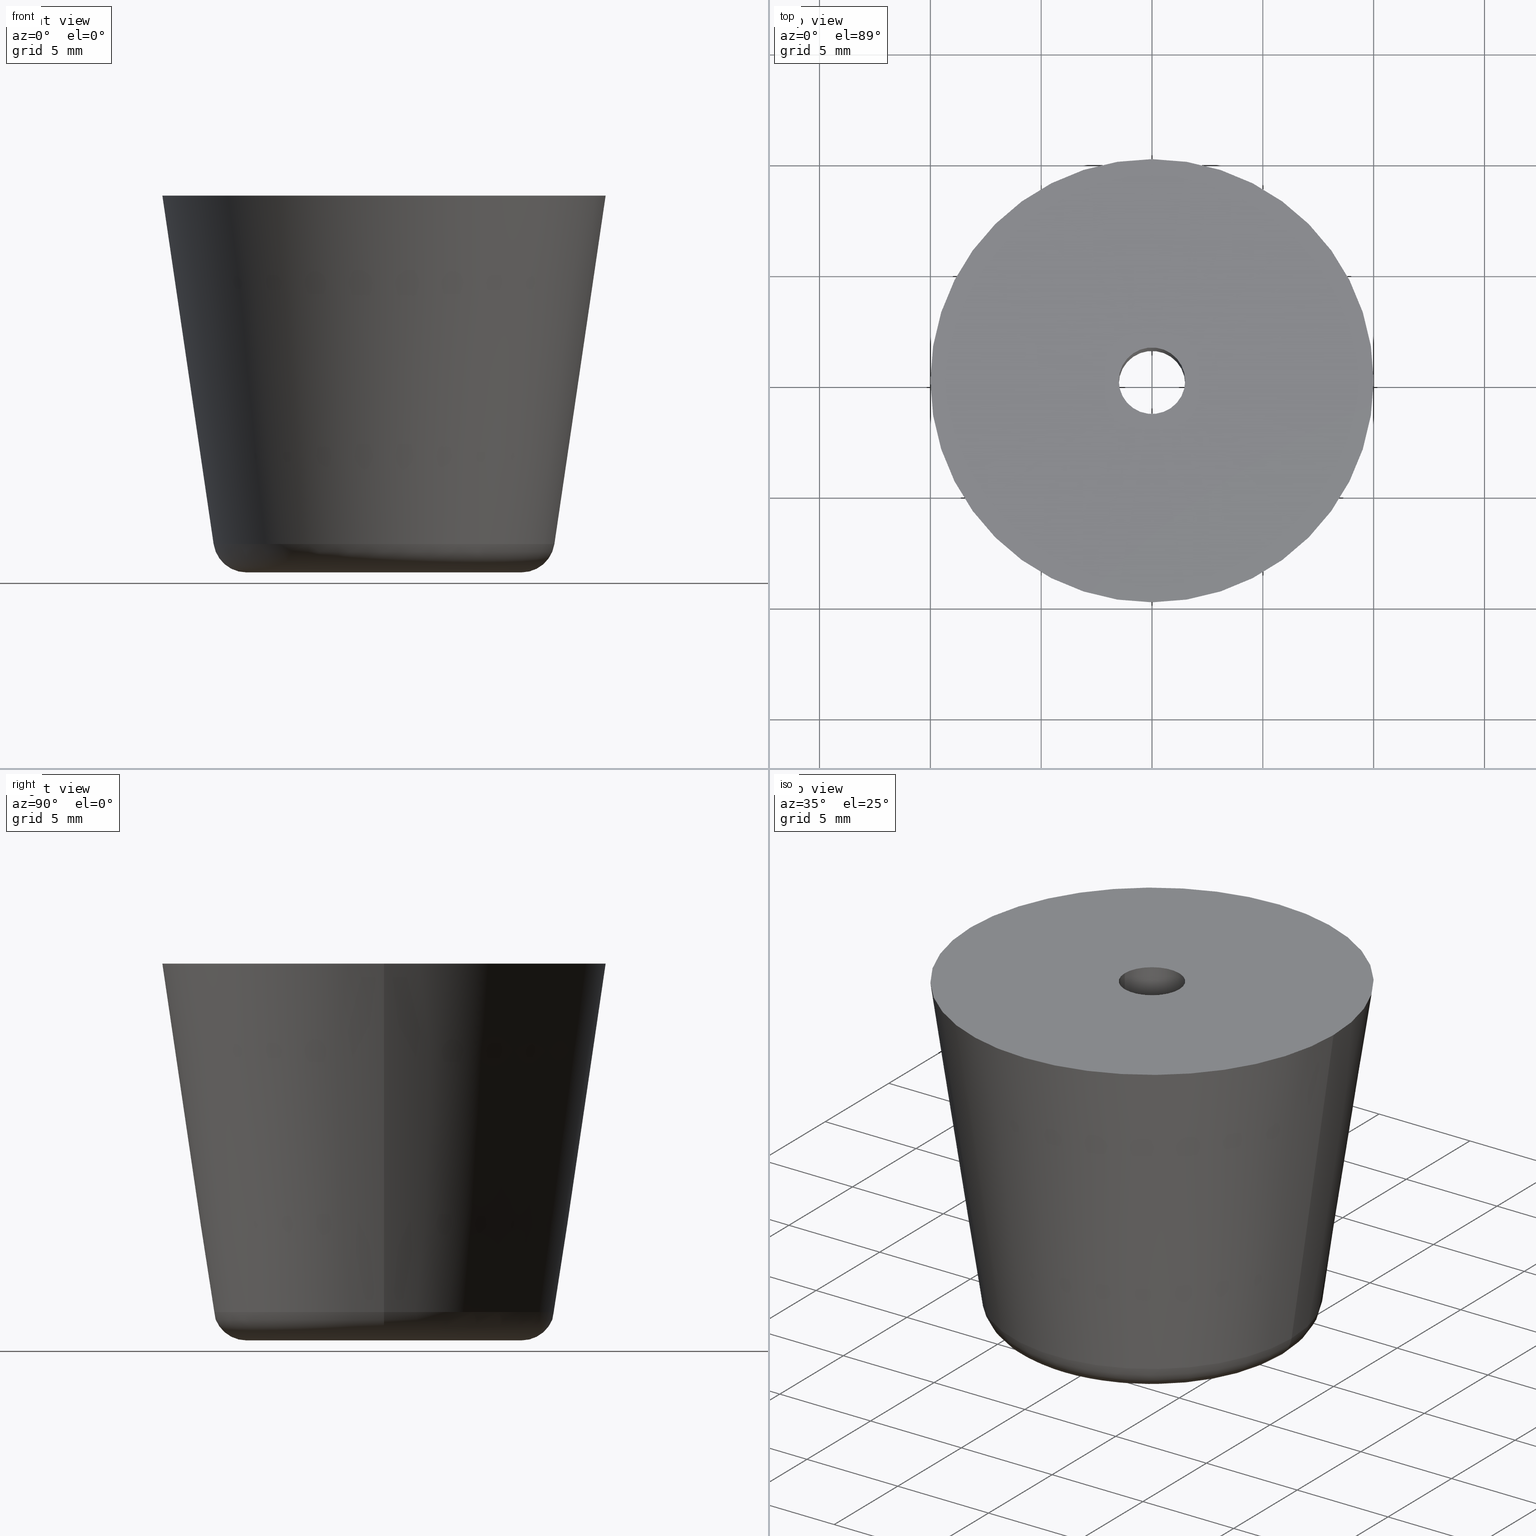
[diagram: canonical four-view strip — front | top / right | iso, engineering-drawing reading convention]
A machine part, canonical four-view strip (front | top / right | iso — engineering-drawing reading convention). The complete STEP part file that produces these views, byte-faithful:
ISO-10303-21;
HEADER;
FILE_DESCRIPTION (( 'STEP AP214' ),
    '1' );
FILE_NAME ('TM_TK_2017_F.STEP',
    '2017-02-14T04:01:53',
    ( '' ),
    ( '' ),
    'SwSTEP 2.0',
    'SolidWorks 2015',
    '' );
FILE_SCHEMA (( 'AUTOMOTIVE_DESIGN' ));
ENDSEC;

DATA;
#1 = DIRECTION ( 'NONE',  ( 0.0000000000000000000, 0.0000000000000000000, -1.000000000000000000 ) ) ;
#2 = SURFACE_SIDE_STYLE ('',( #328 ) ) ;
#3 = AXIS2_PLACEMENT_3D ( 'NONE', #483, #113, #545 ) ;
#4 = ORIENTED_EDGE ( 'NONE', *, *, #670, .F. ) ;
#5 = DIRECTION ( 'NONE',  ( -1.000000000000000000, 0.0000000000000000000, 0.0000000000000000000 ) ) ;
#6 = DIRECTION ( 'NONE',  ( 0.0000000000000000000, 0.0000000000000000000, 1.000000000000000000 ) ) ;
#7 = DIRECTION ( 'NONE',  ( 1.000000000000000000, 0.0000000000000000000, 0.0000000000000000000 ) ) ;
#8 = DIRECTION ( 'NONE',  ( -1.000000000000000000, 0.0000000000000000000, 0.0000000000000000000 ) ) ;
#9 = PRODUCT_CONTEXT ( 'NONE', #715, 'mechanical' ) ;
#10 = AXIS2_PLACEMENT_3D ( 'NONE', #344, #749, #396 ) ;
#11 = ADVANCED_BREP_SHAPE_REPRESENTATION ( '', ( #759, #408 ), #612 ) ;
#12 = STYLED_ITEM ( 'NONE', ( #375 ), #353 ) ;
#13 = DIRECTION ( 'NONE',  ( -1.000000000000000000, 0.0000000000000000000, 0.0000000000000000000 ) ) ;
#14 = ORIENTED_EDGE ( 'NONE', *, *, #517, .T. ) ;
#15 = FACE_OUTER_BOUND ( 'NONE', #686, .T. ) ;
#16 = EDGE_CURVE ( 'NONE', #427, #313, #473, .T. ) ;
#17 = VERTEX_POINT ( 'NONE', #580 ) ;
#18 = CIRCLE ( 'NONE', #623, 3.500000000000000000 ) ;
#19 = CIRCLE ( 'NONE', #725, 7.688493999999999500 ) ;
#20 = CARTESIAN_POINT ( 'NONE',  ( 1.750000000000000000, 2.143131898507868300E-016, 8.499999999999900500 ) ) ;
#21 = DIRECTION ( 'NONE',  ( 0.0000000000000000000, 0.0000000000000000000, -1.000000000000000000 ) ) ;
#22 = CARTESIAN_POINT ( 'NONE',  ( 6.204455000000000300, 8.506977582544995100E-016, 0.0000000000000000000 ) ) ;
#23 = CARTESIAN_POINT ( 'NONE',  ( 0.0000000000000000000, 0.0000000000000000000, 7.999999999999899600 ) ) ;
#24 = FACE_OUTER_BOUND ( 'NONE', #627, .T. ) ;
#25 = CARTESIAN_POINT ( 'NONE',  ( 1.750000000000000000, 2.143131898507868300E-016, 0.0000000000000000000 ) ) ;
#26 = EDGE_LOOP ( 'NONE', ( #295, #296, #32, #410 ) ) ;
#27 = ORIENTED_EDGE ( 'NONE', *, *, #394, .T. ) ;
#28 = DIRECTION ( 'NONE',  ( -1.000000000000000000, 0.0000000000000000000, 0.0000000000000000000 ) ) ;
#29 = DIRECTION ( 'NONE',  ( -1.000000000000000000, 0.0000000000000000000, 0.0000000000000000000 ) ) ;
#30 = CARTESIAN_POINT ( 'NONE',  ( 0.0000000000000000000, 0.0000000000000000000, 17.00000000000000000 ) ) ;
#31 = EDGE_CURVE ( 'NONE', #331, #313, #628, .T. ) ;
#32 = ORIENTED_EDGE ( 'NONE', *, *, #190, .F. ) ;
#33 = ADVANCED_FACE ( 'NONE', ( #15 ), #409, .F. ) ;
#34 =( REPRESENTATION_RELATIONSHIP ('NONE','NONE', #746, #521 ) REPRESENTATION_RELATIONSHIP_WITH_TRANSFORMATION ( #687 )SHAPE_REPRESENTATION_RELATIONSHIP( ) );
#35 = CONTEXT_DEPENDENT_SHAPE_REPRESENTATION ( #34, #721 ) ;
#36 = EDGE_CURVE ( 'NONE', #133, #361, #758, .T. ) ;
#37 = AXIS2_PLACEMENT_3D ( 'NONE', #299, #709, #358 ) ;
#38 = ORIENTED_EDGE ( 'NONE', *, *, #494, .T. ) ;
#39 = ADVANCED_FACE ( 'NONE', ( #150, #570 ), #285, .F. ) ;
#40 = CARTESIAN_POINT ( 'NONE',  ( 0.0000000000000000000, 0.0000000000000000000, 8.499999999999900500 ) ) ;
#41 = CARTESIAN_POINT ( 'NONE',  ( -3.500000000000000000, 0.0000000000000000000, 0.0000000000000000000 ) ) ;
#42 = EDGE_LOOP ( 'NONE', ( #386, #134 ) ) ;
#43 = AXIS2_PLACEMENT_3D ( 'NONE', #626, #382, #29 ) ;
#44 = CONICAL_SURFACE ( 'NONE', #441, 10.00000000000000000, 0.1460122558796984600 ) ;
#45 = DIRECTION ( 'NONE',  ( 0.0000000000000000000, 0.0000000000000000000, -1.000000000000000000 ) ) ;
#46 = DIRECTION ( 'NONE',  ( 0.0000000000000000000, 0.0000000000000000000, -1.000000000000000000 ) ) ;
#47 = DIRECTION ( 'NONE',  ( 1.000000000000000000, 0.0000000000000000000, 0.0000000000000000000 ) ) ;
#48 = EDGE_LOOP ( 'NONE', ( #741, #676 ) ) ;
#49 = CYLINDRICAL_SURFACE ( 'NONE', #279, 1.500000000000000000 ) ;
#50 = DIRECTION ( 'NONE',  ( 0.0000000000000000000, 0.0000000000000000000, -1.000000000000000000 ) ) ;
#51 = PRODUCT_DEFINITION_SHAPE ( 'NONE', 'NONE',  #416 ) ;
#52 = EDGE_CURVE ( 'NONE', #591, #614, #701, .T. ) ;
#53 = FACE_OUTER_BOUND ( 'NONE', #454, .T. ) ;
#54 = AXIS2_PLACEMENT_3D ( 'NONE', #181, #601, #234 ) ;
#55 = DIRECTION ( 'NONE',  ( 0.0000000000000000000, 0.0000000000000000000, 1.000000000000000000 ) ) ;
#56 = VECTOR ( 'NONE', #450, 1000.000000000000000 ) ;
#57 =( LENGTH_UNIT ( ) NAMED_UNIT ( * ) SI_UNIT ( .MILLI., .METRE. ) );
#58 =( LENGTH_UNIT ( ) NAMED_UNIT ( * ) SI_UNIT ( .MILLI., .METRE. ) );
#59 = FILL_AREA_STYLE ('',( #422 ) ) ;
#60 = ORIENTED_EDGE ( 'NONE', *, *, #760, .T. ) ;
#61 = PLANE ( 'NONE',  #238 ) ;
#62 = ORIENTED_EDGE ( 'NONE', *, *, #632, .T. ) ;
#63 = APPLICATION_PROTOCOL_DEFINITION ( 'draft international standard', 'automotive_design', 1998, #424 ) ;
#64 = DIRECTION ( 'NONE',  ( 0.0000000000000000000, 0.0000000000000000000, 1.000000000000000000 ) ) ;
#65 = CIRCLE ( 'NONE', #160, 10.00000000000000000 ) ;
#66 = VECTOR ( 'NONE', #750, 1000.000000000000000 ) ;
#67 = ORIENTED_EDGE ( 'NONE', *, *, #589, .T. ) ;
#68 = EDGE_CURVE ( 'NONE', #133, #17, #251, .T. ) ;
#69 = SHAPE_DEFINITION_REPRESENTATION ( #697, #521 ) ;
#70 = VECTOR ( 'NONE', #629, 1000.000000000000100 ) ;
#71 = ORIENTED_EDGE ( 'NONE', *, *, #68, .F. ) ;
#72 = LINE ( 'NONE', #25, #543 ) ;
#73 = DIRECTION ( 'NONE',  ( 0.0000000000000000000, 0.0000000000000000000, -1.000000000000000000 ) ) ;
#74 = EDGE_CURVE ( 'NONE', #733, #616, #89, .T. ) ;
#75 = AXIS2_PLACEMENT_3D ( 'NONE', #598, #360, #5 ) ;
#76 = AXIS2_PLACEMENT_3D ( 'NONE', #164, #46, #468 ) ;
#77 = AXIS2_PLACEMENT_3D ( 'NONE', #621, #258, #674 ) ;
#78 = CARTESIAN_POINT ( 'NONE',  ( 0.0000000000000000000, 0.0000000000000000000, 1.500000000000000000 ) ) ;
#79 = AXIS2_PLACEMENT_3D ( 'NONE', #85, #148, #446 ) ;
#80 = FACE_OUTER_BOUND ( 'NONE', #481, .T. ) ;
#81 = DIRECTION ( 'NONE',  ( -1.000000000000000000, 0.0000000000000000000, 0.0000000000000000000 ) ) ;
#82 = VECTOR ( 'NONE', #564, 1000.000000000000000 ) ;
#83 = DIRECTION ( 'NONE',  ( -0.1454939886827439900, 1.781787475355036500E-017, 0.9893591356313365900 ) ) ;
#84 = ORIENTED_EDGE ( 'NONE', *, *, #31, .T. ) ;
#85 = CARTESIAN_POINT ( 'NONE',  ( 0.0000000000000000000, 0.0000000000000000000, 0.0000000000000000000 ) ) ;
#86 = DIRECTION ( 'NONE',  ( -0.0000000000000000000, -1.000000000000000000, -0.0000000000000000000 ) ) ;
#87 = DIRECTION ( 'NONE',  ( 0.0000000000000000000, 0.0000000000000000000, 1.000000000000000000 ) ) ;
#88 = ADVANCED_FACE ( 'NONE', ( #555 ), #212, .F. ) ;
#89 = LINE ( 'NONE', #128, #70 ) ;
#90 = EDGE_CURVE ( 'NONE', #427, #466, #688, .T. ) ;
#91 = ORIENTED_EDGE ( 'NONE', *, *, #16, .F. ) ;
#92 = ORIENTED_EDGE ( 'NONE', *, *, #384, .F. ) ;
#93 = LINE ( 'NONE', #633, #412 ) ;
#94 = AXIS2_PLACEMENT_3D ( 'NONE', #655, #304, #712 ) ;
#95 =( REPRESENTATION_RELATIONSHIP ('NONE','NONE', #746, #501 ) REPRESENTATION_RELATIONSHIP_WITH_TRANSFORMATION ( #653 )SHAPE_REPRESENTATION_RELATIONSHIP( ) );
#96 = ADVANCED_FACE ( 'NONE', ( #53, #376 ), #732, .F. ) ;
#97 = CARTESIAN_POINT ( 'NONE',  ( 1.750000000000000000, 0.0000000000000000000, 8.499999999999900500 ) ) ;
#98 = DIRECTION ( 'NONE',  ( 0.0000000000000000000, 0.0000000000000000000, -1.000000000000000000 ) ) ;
#99 = DIRECTION ( 'NONE',  ( 0.0000000000000000000, 0.0000000000000000000, -1.000000000000000000 ) ) ;
#100 = DIRECTION ( 'NONE',  ( 1.000000000000000000, 0.0000000000000000000, 0.0000000000000000000 ) ) ;
#101 = VERTEX_POINT ( 'NONE', #250 ) ;
#102 = ORIENTED_EDGE ( 'NONE', *, *, #314, .T. ) ;
#103 = SURFACE_STYLE_USAGE ( .BOTH. , #487 ) ;
#104 = EDGE_CURVE ( 'NONE', #455, #227, #355, .T. ) ;
#105 = ORIENTED_EDGE ( 'NONE', *, *, #406, .F. ) ;
#106 = CARTESIAN_POINT ( 'NONE',  ( 0.0000000000000000000, 0.0000000000000000000, 7.999999999999899600 ) ) ;
#107 = ORIENTED_EDGE ( 'NONE', *, *, #429, .T. ) ;
#108 =( NAMED_UNIT ( * ) PLANE_ANGLE_UNIT ( ) SI_UNIT ( $, .RADIAN. ) );
#109 = CYLINDRICAL_SURFACE ( 'NONE', #43, 1.750000000000000000 ) ;
#110 = CARTESIAN_POINT ( 'NONE',  ( 0.0000000000000000000, 0.0000000000000000000, 8.499999999999900500 ) ) ;
#111 =( NAMED_UNIT ( * ) SI_UNIT ( $, .STERADIAN. ) SOLID_ANGLE_UNIT ( ) );
#112 = EDGE_CURVE ( 'NONE', #594, #722, #520, .T. ) ;
#113 = DIRECTION ( 'NONE',  ( 0.0000000000000000000, 0.0000000000000000000, -1.000000000000000000 ) ) ;
#114 = VECTOR ( 'NONE', #98, 1000.000000000000000 ) ;
#115 = CARTESIAN_POINT ( 'NONE',  ( 0.0000000000000000000, 0.0000000000000000000, 8.499999999999900500 ) ) ;
#116 = FACE_OUTER_BOUND ( 'NONE', #252, .T. ) ;
#117 = AXIS2_PLACEMENT_3D ( 'NONE', #236, #656, #417 ) ;
#118 = AXIS2_PLACEMENT_3D ( 'NONE', #668, #310, #524 ) ;
#119 =( NAMED_UNIT ( * ) SI_UNIT ( $, .STERADIAN. ) SOLID_ANGLE_UNIT ( ) );
#120 = CARTESIAN_POINT ( 'NONE',  ( 1.750000000000000000, 2.143131898507868300E-016, 8.499999999999900500 ) ) ;
#121 = PRODUCT_CONTEXT ( 'NONE', #240, 'mechanical' ) ;
#122 = AXIS2_PLACEMENT_3D ( 'NONE', #97, #527, #438 ) ;
#123 = PRESENTATION_LAYER_ASSIGNMENT (  '', '', ( #12 ) ) ;
#124 = CARTESIAN_POINT ( 'NONE',  ( 3.500000000000000000, 0.0000000000000000000, 7.999999999999899600 ) ) ;
#125 = CARTESIAN_POINT ( 'NONE',  ( -3.500000000000000000, 0.0000000000000000000, 7.999999999999899600 ) ) ;
#126 = STYLED_ITEM ( 'NONE', ( #260 ), #759 ) ;
#127 = EDGE_LOOP ( 'NONE', ( #321, #105 ) ) ;
#128 = CARTESIAN_POINT ( 'NONE',  ( 10.00000000000000000, 0.0000000000000000000, 17.00000000000000000 ) ) ;
#129 = EDGE_LOOP ( 'NONE', ( #718, #4 ) ) ;
#130 = EDGE_CURVE ( 'NONE', #556, #289, #174, .T. ) ;
#131 = CLOSED_SHELL ( 'NONE', ( #573, #462, #525, #341, #694, #215, #460, #88, #39, #519, #748, #452, #96, #270, #280, #737, #162 ) ) ;
#132 = EDGE_LOOP ( 'NONE', ( #717, #27, #609, #625 ) ) ;
#133 = VERTEX_POINT ( 'NONE', #120 ) ;
#134 = ORIENTED_EDGE ( 'NONE', *, *, #226, .F. ) ;
#135 = ORIENTED_EDGE ( 'NONE', *, *, #553, .T. ) ;
#136 = FACE_OUTER_BOUND ( 'NONE', #42, .T. ) ;
#137 = SURFACE_SIDE_STYLE ('',( #673 ) ) ;
#138 = AXIS2_PLACEMENT_3D ( 'NONE', #362, #6, #419 ) ;
#139 = CIRCLE ( 'NONE', #284, 1.750000000000000000 ) ;
#140 = ORIENTED_EDGE ( 'NONE', *, *, #760, .F. ) ;
#141 = UNCERTAINTY_MEASURE_WITH_UNIT (LENGTH_MEASURE( 1.000000000000000100E-005 ), #596, 'distance_accuracy_value', 'NONE');
#142 = DIRECTION ( 'NONE',  ( 0.0000000000000000000, 0.0000000000000000000, -1.000000000000000000 ) ) ;
#143 = SHAPE_REPRESENTATION_RELATIONSHIP ( 'NONE' , 'NONE' ,  #521, #423 ) ;
#144 = ORIENTED_EDGE ( 'NONE', *, *, #735, .T. ) ;
#145 = CARTESIAN_POINT ( 'NONE',  ( 0.0000000000000000000, 0.0000000000000000000, 7.999999999999899600 ) ) ;
#146 = CARTESIAN_POINT ( 'NONE',  ( 7.688494000000000400, 0.0000000000000000000, 1.281758999999894000 ) ) ;
#147 = DIRECTION ( 'NONE',  ( 0.0000000000000000000, 0.0000000000000000000, -1.000000000000000000 ) ) ;
#148 = DIRECTION ( 'NONE',  ( 0.0000000000000000000, 0.0000000000000000000, -1.000000000000000000 ) ) ;
#149 = DIRECTION ( 'NONE',  ( 0.0000000000000000000, 0.0000000000000000000, -1.000000000000000000 ) ) ;
#150 = FACE_BOUND ( 'NONE', #48, .T. ) ;
#151 = DIRECTION ( 'NONE',  ( 0.0000000000000000000, 0.0000000000000000000, -1.000000000000000000 ) ) ;
#152 = EDGE_CURVE ( 'NONE', #475, #740, #18, .T. ) ;
#153 = ORIENTED_EDGE ( 'NONE', *, *, #112, .T. ) ;
#154 = ORIENTED_EDGE ( 'NONE', *, *, #394, .F. ) ;
#155 = EDGE_LOOP ( 'NONE', ( #575, #247 ) ) ;
#156 = VECTOR ( 'NONE', #319, 1000.000000000000000 ) ;
#157 = LINE ( 'NONE', #379, #82 ) ;
#158 = EDGE_LOOP ( 'NONE', ( #451, #428, #607, #593 ) ) ;
#159 = EDGE_CURVE ( 'NONE', #591, #475, #317, .T. ) ;
#160 = AXIS2_PLACEMENT_3D ( 'NONE', #307, #716, #369 ) ;
#161 = CARTESIAN_POINT ( 'NONE',  ( 10.00000000000000000, 0.0000000000000000000, 17.00000000000000000 ) ) ;
#162 = ADVANCED_FACE ( 'NONE', ( #618 ), #297, .F. ) ;
#163 = CARTESIAN_POINT ( 'NONE',  ( 3.500000000000000000, 4.286263797015736600E-016, 0.0000000000000000000 ) ) ;
#164 = CARTESIAN_POINT ( 'NONE',  ( 0.0000000000000000000, 0.0000000000000000000, 0.0000000000000000000 ) ) ;
#165 = MECHANICAL_DESIGN_GEOMETRIC_PRESENTATION_REPRESENTATION (  '', ( #12 ), #203 ) ;
#166 = CARTESIAN_POINT ( 'NONE',  ( 0.0000000000000000000, 0.0000000000000000000, 1.281758999999894000 ) ) ;
#167 = PRESENTATION_STYLE_ASSIGNMENT (( #415 ) ) ;
#168 = ORIENTED_EDGE ( 'NONE', *, *, #104, .T. ) ;
#169 = ORIENTED_EDGE ( 'NONE', *, *, #190, .T. ) ;
#170 = AXIS2_PLACEMENT_3D ( 'NONE', #413, #55, #480 ) ;
#171 = DIRECTION ( 'NONE',  ( 0.0000000000000000000, 0.0000000000000000000, -1.000000000000000000 ) ) ;
#172 = DIRECTION ( 'NONE',  ( 0.0000000000000000000, 0.0000000000000000000, -1.000000000000000000 ) ) ;
#173 = ORIENTED_EDGE ( 'NONE', *, *, #684, .T. ) ;
#174 = CIRCLE ( 'NONE', #581, 4.500000000000000000 ) ;
#175 = EDGE_CURVE ( 'NONE', #466, #616, #635, .T. ) ;
#176 = DIRECTION ( 'NONE',  ( -1.000000000000000000, 0.0000000000000000000, 0.0000000000000000000 ) ) ;
#177 =( GEOMETRIC_REPRESENTATION_CONTEXT ( 3 ) GLOBAL_UNCERTAINTY_ASSIGNED_CONTEXT ( ( #508 ) ) GLOBAL_UNIT_ASSIGNED_CONTEXT ( ( #58, #485, #119 ) ) REPRESENTATION_CONTEXT ( 'NONE', 'WORKASPACE' ) );
#178 = FILL_AREA_STYLE ('',( #705 ) ) ;
#179 = DIRECTION ( 'NONE',  ( -1.000000000000000000, 0.0000000000000000000, 0.0000000000000000000 ) ) ;
#180 = CONTEXT_DEPENDENT_SHAPE_REPRESENTATION ( #95, #370 ) ;
#181 = CARTESIAN_POINT ( 'NONE',  ( 0.0000000000000000000, 0.0000000000000000000, 0.0000000000000000000 ) ) ;
#182 = DIRECTION ( 'NONE',  ( -1.000000000000000000, 0.0000000000000000000, 0.0000000000000000000 ) ) ;
#183 = ORIENTED_EDGE ( 'NONE', *, *, #130, .F. ) ;
#184 = DIRECTION ( 'NONE',  ( 0.0000000000000000000, 0.0000000000000000000, 1.000000000000000000 ) ) ;
#185 = APPLICATION_PROTOCOL_DEFINITION ( 'draft international standard', 'automotive_design', 1998, #549 ) ;
#186 = CARTESIAN_POINT ( 'NONE',  ( -4.500000000000000000, 0.0000000000000000000, 8.499999999999900500 ) ) ;
#187 = LINE ( 'NONE', #639, #66 ) ;
#188 = ORIENTED_EDGE ( 'NONE', *, *, #589, .F. ) ;
#189 = DIRECTION ( 'NONE',  ( 0.0000000000000000000, 0.0000000000000000000, -1.000000000000000000 ) ) ;
#190 = EDGE_CURVE ( 'NONE', #332, #17, #762, .T. ) ;
#191 =( LENGTH_UNIT ( ) NAMED_UNIT ( * ) SI_UNIT ( .MILLI., .METRE. ) );
#192 = CARTESIAN_POINT ( 'NONE',  ( 0.0000000000000000000, 0.0000000000000000000, 0.0000000000000000000 ) ) ;
#193 = ORIENTED_EDGE ( 'NONE', *, *, #517, .F. ) ;
#194 = FACE_OUTER_BOUND ( 'NONE', #753, .T. ) ;
#195 = EDGE_CURVE ( 'NONE', #17, #332, #476, .T. ) ;
#196 = EDGE_LOOP ( 'NONE', ( #558, #584, #217, #430 ) ) ;
#197 = AXIS2_PLACEMENT_3D ( 'NONE', #23, #444, #81 ) ;
#198 = AXIS2_PLACEMENT_3D ( 'NONE', #366, #603, #8 ) ;
#199 = ORIENTED_EDGE ( 'NONE', *, *, #195, .T. ) ;
#200 = AXIS2_PLACEMENT_3D ( 'NONE', #345, #397, #464 ) ;
#201 = FACE_OUTER_BOUND ( 'NONE', #391, .T. ) ;
#202 = CARTESIAN_POINT ( 'NONE',  ( -1.750000000000000000, 0.0000000000000000000, 0.0000000000000000000 ) ) ;
#203 =( GEOMETRIC_REPRESENTATION_CONTEXT ( 3 ) GLOBAL_UNCERTAINTY_ASSIGNED_CONTEXT ( ( #269 ) ) GLOBAL_UNIT_ASSIGNED_CONTEXT ( ( #191, #619, #255 ) ) REPRESENTATION_CONTEXT ( 'NONE', 'WORKASPACE' ) );
#204 = VERTEX_POINT ( 'NONE', #288 ) ;
#205 = DIRECTION ( 'NONE',  ( -1.000000000000000000, 0.0000000000000000000, 0.0000000000000000000 ) ) ;
#206 = FILL_AREA_STYLE_COLOUR ( '', #254 ) ;
#207 = FACE_OUTER_BOUND ( 'NONE', #292, .T. ) ;
#208 = PRESENTATION_LAYER_ASSIGNMENT (  '', '', ( #126 ) ) ;
#209 = CARTESIAN_POINT ( 'NONE',  ( -1.750000000000000000, 0.0000000000000000000, 8.499999999999900500 ) ) ;
#210 = DIRECTION ( 'NONE',  ( 1.000000000000000000, 0.0000000000000000000, 0.0000000000000000000 ) ) ;
#211 = ADVANCED_FACE ( 'NONE', ( #136, #743 ), #463, .F. ) ;
#212 = CYLINDRICAL_SURFACE ( 'NONE', #504, 4.500000000000000000 ) ;
#213 = LINE ( 'NONE', #202, #56 ) ;
#214 = CARTESIAN_POINT ( 'NONE',  ( 3.500000000000000000, 4.286263797015736600E-016, 7.999999999999899600 ) ) ;
#215 = ADVANCED_FACE ( 'NONE', ( #595 ), #724, .F. ) ;
#216 = ORIENTED_EDGE ( 'NONE', *, *, #390, .T. ) ;
#217 = ORIENTED_EDGE ( 'NONE', *, *, #175, .T. ) ;
#218 = CARTESIAN_POINT ( 'NONE',  ( 1.500000000000000000, 1.836970198721029900E-016, 17.00000000000000000 ) ) ;
#219 = CARTESIAN_POINT ( 'NONE',  ( 4.500000000000000000, 0.0000000000000000000, 8.499999999999900500 ) ) ;
#220 = CYLINDRICAL_SURFACE ( 'NONE', #75, 4.500000000000000000 ) ;
#221 = DIRECTION ( 'NONE',  ( -1.000000000000000000, 0.0000000000000000000, 0.0000000000000000000 ) ) ;
#222 = CARTESIAN_POINT ( 'NONE',  ( -4.500000000000000000, 0.0000000000000000000, 8.499999999999900500 ) ) ;
#223 = VECTOR ( 'NONE', #326, 1000.000000000000000 ) ;
#224 = SHAPE_DEFINITION_REPRESENTATION ( #498, #501 ) ;
#225 = CYLINDRICAL_SURFACE ( 'NONE', #79, 1.500000000000000000 ) ;
#226 = EDGE_CURVE ( 'NONE', #622, #594, #457, .T. ) ;
#227 = VERTEX_POINT ( 'NONE', #683 ) ;
#228 = CARTESIAN_POINT ( 'NONE',  ( 6.204455000000000300, 0.0000000000000000000, 0.0000000000000000000 ) ) ;
#229 = DIRECTION ( 'NONE',  ( 0.0000000000000000000, 0.0000000000000000000, -1.000000000000000000 ) ) ;
#230 = TOROIDAL_SURFACE ( 'NONE', #662, 6.204455000000000300, 1.500000000000000000 ) ;
#231 =( NAMED_UNIT ( * ) PLANE_ANGLE_UNIT ( ) SI_UNIT ( $, .RADIAN. ) );
#232 = SURFACE_STYLE_USAGE ( .BOTH. , #597 ) ;
#233 = CARTESIAN_POINT ( 'NONE',  ( 1.500000000000000000, 1.836970198721029900E-016, 0.0000000000000000000 ) ) ;
#234 = DIRECTION ( 'NONE',  ( 1.000000000000000000, 0.0000000000000000000, 0.0000000000000000000 ) ) ;
#235 = EDGE_CURVE ( 'NONE', #657, #761, #275, .T. ) ;
#236 = CARTESIAN_POINT ( 'NONE',  ( 0.0000000000000000000, 0.0000000000000000000, 8.499999999999900500 ) ) ;
#237 =( NAMED_UNIT ( * ) PLANE_ANGLE_UNIT ( ) SI_UNIT ( $, .RADIAN. ) );
#238 = AXIS2_PLACEMENT_3D ( 'NONE', #239, #64, #490 ) ;
#239 = CARTESIAN_POINT ( 'NONE',  ( 4.500000000000000000, 0.0000000000000000000, 7.999999999999899600 ) ) ;
#240 = APPLICATION_CONTEXT ( 'automotive_design' ) ;
#241 = CARTESIAN_POINT ( 'NONE',  ( 0.0000000000000000000, 0.0000000000000000000, 0.0000000000000000000 ) ) ;
#242 = AXIS2_PLACEMENT_3D ( 'NONE', #106, #539, #176 ) ;
#243 = CARTESIAN_POINT ( 'NONE',  ( 0.0000000000000000000, 0.0000000000000000000, 8.499999999999900500 ) ) ;
#244 = CIRCLE ( 'NONE', #37, 1.750000000000000000 ) ;
#245 =( LENGTH_UNIT ( ) NAMED_UNIT ( * ) SI_UNIT ( .MILLI., .METRE. ) );
#246 = PRESENTATION_STYLE_ASSIGNMENT (( #103 ) ) ;
#247 = ORIENTED_EDGE ( 'NONE', *, *, #373, .F. ) ;
#248 = ORIENTED_EDGE ( 'NONE', *, *, #287, .F. ) ;
#249 = MECHANICAL_DESIGN_GEOMETRIC_PRESENTATION_REPRESENTATION (  '', ( #126 ), #290 ) ;
#250 = CARTESIAN_POINT ( 'NONE',  ( 4.500000000000000000, 5.510910596163088600E-016, 7.999999999999899600 ) ) ;
#251 = LINE ( 'NONE', #469, #389 ) ;
#252 = EDGE_LOOP ( 'NONE', ( #169, #199 ) ) ;
#253 = ORIENTED_EDGE ( 'NONE', *, *, #646, .T. ) ;
#254 = COLOUR_RGB ( '',0.7921568627450980000, 0.8196078431372548800, 0.9333333333333333500 ) ;
#255 =( NAMED_UNIT ( * ) SI_UNIT ( $, .STERADIAN. ) SOLID_ANGLE_UNIT ( ) );
#256 = AXIS2_PLACEMENT_3D ( 'NONE', #484, #184, #604 ) ;
#257 = DIRECTION ( 'NONE',  ( -1.000000000000000000, 0.0000000000000000000, 0.0000000000000000000 ) ) ;
#258 = DIRECTION ( 'NONE',  ( 0.0000000000000000000, 0.0000000000000000000, -1.000000000000000000 ) ) ;
#259 = VECTOR ( 'NONE', #405, 1000.000000000000000 ) ;
#260 = PRESENTATION_STYLE_ASSIGNMENT (( #232 ) ) ;
#261 = DIRECTION ( 'NONE',  ( -1.000000000000000000, 0.0000000000000000000, 0.0000000000000000000 ) ) ;
#262 = DIRECTION ( 'NONE',  ( 0.0000000000000000000, 0.0000000000000000000, -1.000000000000000000 ) ) ;
#263 = DIRECTION ( 'NONE',  ( -1.000000000000000000, 0.0000000000000000000, 0.0000000000000000000 ) ) ;
#264 = ORIENTED_EDGE ( 'NONE', *, *, #735, .F. ) ;
#265 = ORIENTED_EDGE ( 'NONE', *, *, #354, .F. ) ;
#266 = CARTESIAN_POINT ( 'NONE',  ( 0.0000000000000000000, 0.0000000000000000000, 17.00000000000000000 ) ) ;
#267 = CARTESIAN_POINT ( 'NONE',  ( 0.0000000000000000000, 0.0000000000000000000, 0.0000000000000000000 ) ) ;
#268 = DIRECTION ( 'NONE',  ( -1.000000000000000000, 0.0000000000000000000, 0.0000000000000000000 ) ) ;
#269 = UNCERTAINTY_MEASURE_WITH_UNIT (LENGTH_MEASURE( 1.000000000000000100E-005 ), #191, 'distance_accuracy_value', 'NONE');
#270 = ADVANCED_FACE ( 'NONE', ( #671 ), #707, .T. ) ;
#271 = ORIENTED_EDGE ( 'NONE', *, *, #322, .F. ) ;
#272 = EDGE_CURVE ( 'NONE', #622, #101, #93, .T. ) ;
#273 = PRODUCT ( 'TM_TK_2017_F', 'TM_TK_2017_F', '', ( #9 ) ) ;
#274 = ORIENTED_EDGE ( 'NONE', *, *, #553, .F. ) ;
#275 = CIRCLE ( 'NONE', #505, 1.500000000000000000 ) ;
#276 = LINE ( 'NONE', #529, #114 ) ;
#277 = COLOUR_RGB ( '',0.7921568627450980000, 0.8196078431372548800, 0.9333333333333333500 ) ;
#278 = EDGE_CURVE ( 'NONE', #368, #204, #392, .T. ) ;
#279 = AXIS2_PLACEMENT_3D ( 'NONE', #241, #663, #13 ) ;
#280 = ADVANCED_FACE ( 'NONE', ( #559 ), #230, .T. ) ;
#281 = AXIS2_PLACEMENT_3D ( 'NONE', #166, #585, #221 ) ;
#282 = DIRECTION ( 'NONE',  ( -1.000000000000000000, 0.0000000000000000000, 0.0000000000000000000 ) ) ;
#283 = UNCERTAINTY_MEASURE_WITH_UNIT (LENGTH_MEASURE( 1.000000000000000100E-005 ), #245, 'distance_accuracy_value', 'NONE');
#284 = AXIS2_PLACEMENT_3D ( 'NONE', #534, #171, #587 ) ;
#285 = PLANE ( 'NONE',  #378 ) ;
#286 = ORIENTED_EDGE ( 'NONE', *, *, #74, .T. ) ;
#287 = EDGE_CURVE ( 'NONE', #368, #227, #72, .T. ) ;
#288 = CARTESIAN_POINT ( 'NONE',  ( -1.750000000000000000, 0.0000000000000000000, 8.499999999999900500 ) ) ;
#289 = VERTEX_POINT ( 'NONE', #513 ) ;
#290 =( GEOMETRIC_REPRESENTATION_CONTEXT ( 3 ) GLOBAL_UNCERTAINTY_ASSIGNED_CONTEXT ( ( #574 ) ) GLOBAL_UNIT_ASSIGNED_CONTEXT ( ( #651, #301, #710 ) ) REPRESENTATION_CONTEXT ( 'NONE', 'WORKASPACE' ) );
#291 = PRODUCT_DEFINITION_CONTEXT ( 'detailed design', #745, 'design' ) ;
#292 = EDGE_LOOP ( 'NONE', ( #264, #188 ) ) ;
#293 = ORIENTED_EDGE ( 'NONE', *, *, #31, .F. ) ;
#294 = ORIENTED_EDGE ( 'NONE', *, *, #322, .T. ) ;
#295 = ORIENTED_EDGE ( 'NONE', *, *, #720, .T. ) ;
#296 = ORIENTED_EDGE ( 'NONE', *, *, #68, .T. ) ;
#297 = CYLINDRICAL_SURFACE ( 'NONE', #729, 3.500000000000000000 ) ;
#298 = DIRECTION ( 'NONE',  ( 1.000000000000000000, 0.0000000000000000000, 0.0000000000000000000 ) ) ;
#299 = CARTESIAN_POINT ( 'NONE',  ( 0.0000000000000000000, 0.0000000000000000000, 7.999999999999899600 ) ) ;
#300 = PRODUCT_DEFINITION ( 'UNKNOWN', '', #569, #631 ) ;
#301 =( NAMED_UNIT ( * ) PLANE_ANGLE_UNIT ( ) SI_UNIT ( $, .RADIAN. ) );
#302 = DIRECTION ( 'NONE',  ( 0.0000000000000000000, 0.0000000000000000000, -1.000000000000000000 ) ) ;
#303 = ORIENTED_EDGE ( 'NONE', *, *, #175, .F. ) ;
#304 = DIRECTION ( 'NONE',  ( 0.0000000000000000000, 0.0000000000000000000, 1.000000000000000000 ) ) ;
#305 = DIRECTION ( 'NONE',  ( -1.224646799147353200E-016, 1.000000000000000000, 0.0000000000000000000 ) ) ;
#306 = CIRCLE ( 'NONE', #333, 1.750000000000000000 ) ;
#307 = CARTESIAN_POINT ( 'NONE',  ( 0.0000000000000000000, 0.0000000000000000000, 17.00000000000000000 ) ) ;
#308 = EDGE_LOOP ( 'NONE', ( #60, #742 ) ) ;
#309 = DIRECTION ( 'NONE',  ( -1.000000000000000000, 0.0000000000000000000, 0.0000000000000000000 ) ) ;
#310 = DIRECTION ( 'NONE',  ( 0.0000000000000000000, 0.0000000000000000000, -1.000000000000000000 ) ) ;
#311 = VECTOR ( 'NONE', #21, 1000.000000000000000 ) ;
#312 = DIRECTION ( 'NONE',  ( 0.0000000000000000000, 0.0000000000000000000, -1.000000000000000000 ) ) ;
#313 = VERTEX_POINT ( 'NONE', #568 ) ;
#314 = EDGE_CURVE ( 'NONE', #361, #332, #213, .T. ) ;
#315 = EDGE_LOOP ( 'NONE', ( #271, #62, #738, #644 ) ) ;
#316 = ORIENTED_EDGE ( 'NONE', *, *, #287, .T. ) ;
#317 = LINE ( 'NONE', #728, #156 ) ;
#318 = CIRCLE ( 'NONE', #691, 4.500000000000000000 ) ;
#319 = DIRECTION ( 'NONE',  ( 0.0000000000000000000, 0.0000000000000000000, -1.000000000000000000 ) ) ;
#320 = ORIENTED_EDGE ( 'NONE', *, *, #195, .F. ) ;
#321 = ORIENTED_EDGE ( 'NONE', *, *, #104, .F. ) ;
#322 = EDGE_CURVE ( 'NONE', #614, #591, #377, .T. ) ;
#323 = AXIS2_PLACEMENT_3D ( 'NONE', #124, #693, #346 ) ;
#324 = AXIS2_PLACEMENT_3D ( 'NONE', #400, #45, #467 ) ;
#325 = AXIS2_PLACEMENT_3D ( 'NONE', #531, #641, #347 ) ;
#326 = DIRECTION ( 'NONE',  ( 0.0000000000000000000, 0.0000000000000000000, -1.000000000000000000 ) ) ;
#327 = DIRECTION ( 'NONE',  ( 0.0000000000000000000, 0.0000000000000000000, -1.000000000000000000 ) ) ;
#328 = SURFACE_STYLE_FILL_AREA ( #357 ) ;
#329 = DIRECTION ( 'NONE',  ( -1.000000000000000000, 0.0000000000000000000, 0.0000000000000000000 ) ) ;
#330 = EDGE_CURVE ( 'NONE', #761, #657, #690, .T. ) ;
#331 = VERTEX_POINT ( 'NONE', #22 ) ;
#332 = VERTEX_POINT ( 'NONE', #510 ) ;
#333 = AXIS2_PLACEMENT_3D ( 'NONE', #115, #546, #182 ) ;
#334 = DIRECTION ( 'NONE',  ( -1.000000000000000000, 0.0000000000000000000, 0.0000000000000000000 ) ) ;
#335 = ADVANCED_FACE ( 'NONE', ( #194 ), #109, .F. ) ;
#336 = ORIENTED_EDGE ( 'NONE', *, *, #384, .T. ) ;
#337 = PRODUCT ( 'washer', 'washer', '', ( #121 ) ) ;
#338 = PRODUCT_CONTEXT ( 'NONE', #660, 'mechanical' ) ;
#339 = PRODUCT_DEFINITION ( 'UNKNOWN', '', #645, #291 ) ;
#340 = EDGE_LOOP ( 'NONE', ( #92, #14, #67, #590 ) ) ;
#341 = ADVANCED_FACE ( 'NONE', ( #359 ), #225, .F. ) ;
#342 = AXIS2_PLACEMENT_3D ( 'NONE', #552, #189, #611 ) ;
#343 = ORIENTED_EDGE ( 'NONE', *, *, #406, .T. ) ;
#344 = CARTESIAN_POINT ( 'NONE',  ( 0.0000000000000000000, 0.0000000000000000000, 7.999999999999899600 ) ) ;
#345 = CARTESIAN_POINT ( 'NONE',  ( 0.0000000000000000000, 0.0000000000000000000, 0.0000000000000000000 ) ) ;
#346 = DIRECTION ( 'NONE',  ( -1.000000000000000000, 0.0000000000000000000, 0.0000000000000000000 ) ) ;
#347 = DIRECTION ( 'NONE',  ( -1.000000000000000000, 0.0000000000000000000, 0.0000000000000000000 ) ) ;
#348 = DIRECTION ( 'NONE',  ( 0.0000000000000000000, 0.0000000000000000000, -1.000000000000000000 ) ) ;
#349 = CYLINDRICAL_SURFACE ( 'NONE', #325, 1.750000000000000000 ) ;
#350 = EDGE_LOOP ( 'NONE', ( #154, #634, #38, #739 ) ) ;
#351 = CARTESIAN_POINT ( 'NONE',  ( -4.500000000000000000, 0.0000000000000000000, 7.999999999999899600 ) ) ;
#352 = CYLINDRICAL_SURFACE ( 'NONE', #76, 1.750000000000000000 ) ;
#353 = MANIFOLD_SOLID_BREP ( '���߰�1', #131 ) ;
#354 = EDGE_CURVE ( 'NONE', #101, #722, #636, .T. ) ;
#355 = CIRCLE ( 'NONE', #420, 1.750000000000000000 ) ;
#356 = CARTESIAN_POINT ( 'NONE',  ( 0.0000000000000000000, 0.0000000000000000000, 7.999999999999899600 ) ) ;
#357 = FILL_AREA_STYLE ('',( #708 ) ) ;
#358 = DIRECTION ( 'NONE',  ( -1.000000000000000000, 0.0000000000000000000, 0.0000000000000000000 ) ) ;
#359 = FACE_OUTER_BOUND ( 'NONE', #132, .T. ) ;
#360 = DIRECTION ( 'NONE',  ( 0.0000000000000000000, 0.0000000000000000000, -1.000000000000000000 ) ) ;
#361 = VERTEX_POINT ( 'NONE', #209 ) ;
#362 = CARTESIAN_POINT ( 'NONE',  ( 0.0000000000000000000, 0.0000000000000000000, 0.0000000000000000000 ) ) ;
#363 = EDGE_CURVE ( 'NONE', #613, #472, #522, .T. ) ;
#364 = DIRECTION ( 'NONE',  ( 0.0000000000000000000, 0.0000000000000000000, 1.000000000000000000 ) ) ;
#365 = AXIS2_PLACEMENT_3D ( 'NONE', #465, #99, #530 ) ;
#366 = CARTESIAN_POINT ( 'NONE',  ( 0.0000000000000000000, 0.0000000000000000000, 0.0000000000000000000 ) ) ;
#367 = APPLICATION_PROTOCOL_DEFINITION ( 'draft international standard', 'automotive_design', 1998, #715 ) ;
#368 = VERTEX_POINT ( 'NONE', #20 ) ;
#369 = DIRECTION ( 'NONE',  ( -1.000000000000000000, 0.0000000000000000000, 0.0000000000000000000 ) ) ;
#370 = PRODUCT_DEFINITION_SHAPE ( 'NONE', 'NONE',  #764 ) ;
#371 = DIRECTION ( 'NONE',  ( 0.0000000000000000000, 0.0000000000000000000, -1.000000000000000000 ) ) ;
#372 = FACE_BOUND ( 'NONE', #127, .T. ) ;
#373 = EDGE_CURVE ( 'NONE', #472, #613, #478, .T. ) ;
#374 =( GEOMETRIC_REPRESENTATION_CONTEXT ( 3 ) GLOBAL_UNCERTAINTY_ASSIGNED_CONTEXT ( ( #431 ) ) GLOBAL_UNIT_ASSIGNED_CONTEXT ( ( #602, #237, #658 ) ) REPRESENTATION_CONTEXT ( 'NONE', 'WORKASPACE' ) );
#375 = PRESENTATION_STYLE_ASSIGNMENT (( #557 ) ) ;
#376 = FACE_BOUND ( 'NONE', #554, .T. ) ;
#377 = CIRCLE ( 'NONE', #624, 3.500000000000000000 ) ;
#378 = AXIS2_PLACEMENT_3D ( 'NONE', #219, #401, #47 ) ;
#379 = CARTESIAN_POINT ( 'NONE',  ( -1.500000000000000000, 0.0000000000000000000, 0.0000000000000000000 ) ) ;
#380 = DIRECTION ( 'NONE',  ( -1.000000000000000000, 0.0000000000000000000, 0.0000000000000000000 ) ) ;
#381 = CIRCLE ( 'NONE', #3, 6.204455000000000300 ) ;
#382 = DIRECTION ( 'NONE',  ( 0.0000000000000000000, 0.0000000000000000000, -1.000000000000000000 ) ) ;
#383 = LINE ( 'NONE', #511, #223 ) ;
#384 = EDGE_CURVE ( 'NONE', #289, #556, #318, .T. ) ;
#385 = DIRECTION ( 'NONE',  ( -1.000000000000000000, 0.0000000000000000000, 0.0000000000000000000 ) ) ;
#386 = ORIENTED_EDGE ( 'NONE', *, *, #433, .F. ) ;
#387 = SHAPE_DEFINITION_REPRESENTATION ( #51, #746 ) ;
#388 = PRODUCT_DEFINITION_CONTEXT ( 'detailed design', #424, 'design' ) ;
#389 = VECTOR ( 'NONE', #495, 1000.000000000000000 ) ;
#390 = EDGE_CURVE ( 'NONE', #427, #733, #19, .T. ) ;
#391 = EDGE_LOOP ( 'NONE', ( #566, #493 ) ) ;
#392 = CIRCLE ( 'NONE', #582, 1.750000000000000000 ) ;
#393 = APPLICATION_PROTOCOL_DEFINITION ( 'draft international standard', 'automotive_design', 1998, #745 ) ;
#394 = EDGE_CURVE ( 'NONE', #657, #472, #562, .T. ) ;
#395 = AXIS2_PLACEMENT_3D ( 'NONE', #659, #305, #714 ) ;
#396 = DIRECTION ( 'NONE',  ( -1.000000000000000000, 0.0000000000000000000, 0.0000000000000000000 ) ) ;
#397 = DIRECTION ( 'NONE',  ( 0.0000000000000000000, 0.0000000000000000000, -1.000000000000000000 ) ) ;
#398 = ADVANCED_FACE ( 'NONE', ( #80 ), #220, .T. ) ;
#399 = VECTOR ( 'NONE', #229, 1000.000000000000000 ) ;
#400 = CARTESIAN_POINT ( 'NONE',  ( 0.0000000000000000000, 0.0000000000000000000, 0.0000000000000000000 ) ) ;
#401 = DIRECTION ( 'NONE',  ( 0.0000000000000000000, 0.0000000000000000000, 1.000000000000000000 ) ) ;
#402 = SURFACE_STYLE_FILL_AREA ( #59 ) ;
#403 = VERTEX_POINT ( 'NONE', #479 ) ;
#404 = ORIENTED_EDGE ( 'NONE', *, *, #448, .F. ) ;
#405 = DIRECTION ( 'NONE',  ( 0.0000000000000000000, 0.0000000000000000000, -1.000000000000000000 ) ) ;
#406 = EDGE_CURVE ( 'NONE', #227, #455, #244, .T. ) ;
#407 = CARTESIAN_POINT ( 'NONE',  ( 0.0000000000000000000, 0.0000000000000000000, 17.00000000000000000 ) ) ;
#408 = AXIS2_PLACEMENT_3D ( 'NONE', #713, #364, #7 ) ;
#409 = CYLINDRICAL_SURFACE ( 'NONE', #605, 1.750000000000000000 ) ;
#410 = ORIENTED_EDGE ( 'NONE', *, *, #314, .F. ) ;
#411 = ORIENTED_EDGE ( 'NONE', *, *, #330, .T. ) ;
#412 = VECTOR ( 'NONE', #507, 1000.000000000000000 ) ;
#413 = CARTESIAN_POINT ( 'NONE',  ( 1.750000000000000000, 0.0000000000000000000, 7.999999999999899600 ) ) ;
#414 = DIRECTION ( 'NONE',  ( -1.000000000000000000, 0.0000000000000000000, 0.0000000000000000000 ) ) ;
#415 = SURFACE_STYLE_USAGE ( .BOTH. , #2 ) ;
#416 = PRODUCT_DEFINITION ( 'UNKNOWN', '', #458, #388 ) ;
#417 = DIRECTION ( 'NONE',  ( -1.000000000000000000, 0.0000000000000000000, 0.0000000000000000000 ) ) ;
#418 = LINE ( 'NONE', #755, #259 ) ;
#419 = DIRECTION ( 'NONE',  ( 1.000000000000000000, 0.0000000000000000000, 0.0000000000000000000 ) ) ;
#420 = AXIS2_PLACEMENT_3D ( 'NONE', #506, #142, #28 ) ;
#421 = AXIS2_PLACEMENT_3D ( 'NONE', #40, #692, #385 ) ;
#422 = FILL_AREA_STYLE_COLOUR ( '', #565 ) ;
#423 = ADVANCED_BREP_SHAPE_REPRESENTATION ( '', ( #353, #408 ), #374 ) ;
#424 = APPLICATION_CONTEXT ( 'automotive_design' ) ;
#425 = PLANE ( 'NONE',  #323 ) ;
#426 = ORIENTED_EDGE ( 'NONE', *, *, #272, .T. ) ;
#427 = VERTEX_POINT ( 'NONE', #541 ) ;
#428 = ORIENTED_EDGE ( 'NONE', *, *, #52, .F. ) ;
#429 = EDGE_CURVE ( 'NONE', #313, #331, #381, .T. ) ;
#430 = ORIENTED_EDGE ( 'NONE', *, *, #74, .F. ) ;
#431 = UNCERTAINTY_MEASURE_WITH_UNIT (LENGTH_MEASURE( 1.000000000000000100E-005 ), #602, 'distance_accuracy_value', 'NONE');
#432 = ORIENTED_EDGE ( 'NONE', *, *, #90, .F. ) ;
#433 = EDGE_CURVE ( 'NONE', #594, #622, #699, .T. ) ;
#434 = ORIENTED_EDGE ( 'NONE', *, *, #130, .T. ) ;
#435 = CIRCLE ( 'NONE', #197, 4.500000000000000000 ) ;
#436 = CARTESIAN_POINT ( 'NONE',  ( 0.0000000000000000000, 0.0000000000000000000, 7.999999999999899600 ) ) ;
#437 = CYLINDRICAL_SURFACE ( 'NONE', #200, 4.500000000000000000 ) ;
#438 = DIRECTION ( 'NONE',  ( -1.000000000000000000, 0.0000000000000000000, 0.0000000000000000000 ) ) ;
#439 = CIRCLE ( 'NONE', #242, 4.500000000000000000 ) ;
#440 = AXIS2_PLACEMENT_3D ( 'NONE', #526, #86, #149 ) ;
#441 = AXIS2_PLACEMENT_3D ( 'NONE', #532, #586, #100 ) ;
#442 = EDGE_LOOP ( 'NONE', ( #756, #294 ) ) ;
#443 = AXIS2_PLACEMENT_3D ( 'NONE', #228, #649, #298 ) ;
#444 = DIRECTION ( 'NONE',  ( 0.0000000000000000000, 0.0000000000000000000, -1.000000000000000000 ) ) ;
#445 = CARTESIAN_POINT ( 'NONE',  ( -10.00000000000000000, 1.224646799147353300E-015, 17.00000000000000000 ) ) ;
#446 = DIRECTION ( 'NONE',  ( -1.000000000000000000, 0.0000000000000000000, 0.0000000000000000000 ) ) ;
#447 = CLOSED_SHELL ( 'NONE', ( #637, #33, #335, #211, #398, #578 ) ) ;
#448 = EDGE_CURVE ( 'NONE', #616, #466, #65, .T. ) ;
#449 = STYLED_ITEM ( 'NONE', ( #246 ), #423 ) ;
#450 = DIRECTION ( 'NONE',  ( 0.0000000000000000000, 0.0000000000000000000, -1.000000000000000000 ) ) ;
#451 = ORIENTED_EDGE ( 'NONE', *, *, #632, .F. ) ;
#452 = ADVANCED_FACE ( 'NONE', ( #550 ), #49, .F. ) ;
#453 = ORIENTED_EDGE ( 'NONE', *, *, #36, .T. ) ;
#454 = EDGE_LOOP ( 'NONE', ( #404, #303 ) ) ;
#455 = VERTEX_POINT ( 'NONE', #489 ) ;
#456 = ORIENTED_EDGE ( 'NONE', *, *, #646, .F. ) ;
#457 = CIRCLE ( 'NONE', #421, 4.500000000000000000 ) ;
#458 = PRODUCT_DEFINITION_FORMATION_WITH_SPECIFIED_SOURCE ( 'ANY', '', #273, .NOT_KNOWN. ) ;
#459 = EDGE_LOOP ( 'NONE', ( #193, #183, #588, #144 ) ) ;
#460 = ADVANCED_FACE ( 'NONE', ( #207, #533 ), #425, .F. ) ;
#461 = AXIS2_PLACEMENT_3D ( 'NONE', #757, #630, #268 ) ;
#462 = ADVANCED_FACE ( 'NONE', ( #679 ), #515, .T. ) ;
#463 = PLANE ( 'NONE',  #122 ) ;
#464 = DIRECTION ( 'NONE',  ( -1.000000000000000000, 0.0000000000000000000, 0.0000000000000000000 ) ) ;
#465 = CARTESIAN_POINT ( 'NONE',  ( 0.0000000000000000000, 0.0000000000000000000, 1.500000000000000000 ) ) ;
#466 = VERTEX_POINT ( 'NONE', #751 ) ;
#467 = DIRECTION ( 'NONE',  ( -1.000000000000000000, 0.0000000000000000000, 0.0000000000000000000 ) ) ;
#468 = DIRECTION ( 'NONE',  ( -1.000000000000000000, 0.0000000000000000000, 0.0000000000000000000 ) ) ;
#469 = CARTESIAN_POINT ( 'NONE',  ( 1.750000000000000000, 2.143131898507868300E-016, 0.0000000000000000000 ) ) ;
#470 = CARTESIAN_POINT ( 'NONE',  ( 4.500000000000000000, 5.510910596163088600E-016, 7.999999999999899600 ) ) ;
#471 = DIRECTION ( 'NONE',  ( -1.000000000000000000, 0.0000000000000000000, 0.0000000000000000000 ) ) ;
#472 = VERTEX_POINT ( 'NONE', #583 ) ;
#473 = CIRCLE ( 'NONE', #440, 1.500000000000000000 ) ;
#474 = EDGE_CURVE ( 'NONE', #722, #101, #435, .T. ) ;
#475 = VERTEX_POINT ( 'NONE', #41 ) ;
#476 = CIRCLE ( 'NONE', #10, 1.750000000000000000 ) ;
#477 = PLANE ( 'NONE',  #170 ) ;
#478 = CIRCLE ( 'NONE', #652, 1.500000000000000000 ) ;
#479 = CARTESIAN_POINT ( 'NONE',  ( -4.500000000000000000, 0.0000000000000000000, 7.999999999999899600 ) ) ;
#480 = DIRECTION ( 'NONE',  ( 1.000000000000000000, 0.0000000000000000000, 0.0000000000000000000 ) ) ;
#481 = EDGE_LOOP ( 'NONE', ( #497, #703, #153, #265 ) ) ;
#482 =( NAMED_UNIT ( * ) PLANE_ANGLE_UNIT ( ) SI_UNIT ( $, .RADIAN. ) );
#483 = CARTESIAN_POINT ( 'NONE',  ( 0.0000000000000000000, 0.0000000000000000000, 0.0000000000000000000 ) ) ;
#484 = CARTESIAN_POINT ( 'NONE',  ( 0.0000000000000000000, 0.0000000000000000000, 0.0000000000000000000 ) ) ;
#485 =( NAMED_UNIT ( * ) PLANE_ANGLE_UNIT ( ) SI_UNIT ( $, .RADIAN. ) );
#486 = AXIS2_PLACEMENT_3D ( 'NONE', #267, #682, #334 ) ;
#487 = SURFACE_SIDE_STYLE ('',( #402 ) ) ;
#488 = APPLICATION_PROTOCOL_DEFINITION ( 'draft international standard', 'automotive_design', 1998, #240 ) ;
#489 = CARTESIAN_POINT ( 'NONE',  ( -1.750000000000000000, 0.0000000000000000000, 7.999999999999899600 ) ) ;
#490 = DIRECTION ( 'NONE',  ( 1.000000000000000000, 0.0000000000000000000, 0.0000000000000000000 ) ) ;
#491 = COLOUR_RGB ( '',0.7921568627450980000, 0.8196078431372548800, 0.9333333333333333500 ) ;
#492 = EDGE_LOOP ( 'NONE', ( #528, #426, #512, #664 ) ) ;
#493 = ORIENTED_EDGE ( 'NONE', *, *, #354, .T. ) ;
#494 = EDGE_CURVE ( 'NONE', #761, #613, #157, .T. ) ;
#495 = DIRECTION ( 'NONE',  ( 0.0000000000000000000, 0.0000000000000000000, -1.000000000000000000 ) ) ;
#496 = PRESENTATION_LAYER_ASSIGNMENT (  '', '', ( #449 ) ) ;
#497 = ORIENTED_EDGE ( 'NONE', *, *, #272, .F. ) ;
#498 = PRODUCT_DEFINITION_SHAPE ( 'NONE', 'NONE',  #300 ) ;
#499 = FILL_AREA_STYLE ('',( #206 ) ) ;
#500 = DIRECTION ( 'NONE',  ( -1.000000000000000000, 0.0000000000000000000, 0.0000000000000000000 ) ) ;
#501 = SHAPE_REPRESENTATION ( 'washer', ( #408 ), #612 ) ;
#502 = PRODUCT_RELATED_PRODUCT_CATEGORY ( 'part', '', ( #273 ) ) ;
#503 = EDGE_LOOP ( 'NONE', ( #432, #736, #286, #667 ) ) ;
#504 = AXIS2_PLACEMENT_3D ( 'NONE', #719, #312, #263 ) ;
#505 = AXIS2_PLACEMENT_3D ( 'NONE', #518, #151, #572 ) ;
#506 = CARTESIAN_POINT ( 'NONE',  ( 0.0000000000000000000, 0.0000000000000000000, 7.999999999999899600 ) ) ;
#507 = DIRECTION ( 'NONE',  ( 0.0000000000000000000, 0.0000000000000000000, -1.000000000000000000 ) ) ;
#508 = UNCERTAINTY_MEASURE_WITH_UNIT (LENGTH_MEASURE( 1.000000000000000100E-005 ), #58, 'distance_accuracy_value', 'NONE');
#509 = CYLINDRICAL_SURFACE ( 'NONE', #198, 3.500000000000000000 ) ;
#510 = CARTESIAN_POINT ( 'NONE',  ( -1.750000000000000000, 0.0000000000000000000, 7.999999999999899600 ) ) ;
#511 = CARTESIAN_POINT ( 'NONE',  ( 4.500000000000000000, 5.510910596163088600E-016, 0.0000000000000000000 ) ) ;
#512 = ORIENTED_EDGE ( 'NONE', *, *, #474, .F. ) ;
#513 = CARTESIAN_POINT ( 'NONE',  ( 4.500000000000000000, 5.510910596163088600E-016, 8.499999999999900500 ) ) ;
#514 = CARTESIAN_POINT ( 'NONE',  ( 1.500000000000000000, 0.0000000000000000000, 17.00000000000000000 ) ) ;
#515 = TOROIDAL_SURFACE ( 'NONE', #365, 6.204455000000000300, 1.500000000000000000 ) ;
#516 = CARTESIAN_POINT ( 'NONE',  ( 0.0000000000000000000, 0.0000000000000000000, 0.0000000000000000000 ) ) ;
#517 = EDGE_CURVE ( 'NONE', #289, #723, #383, .T. ) ;
#518 = CARTESIAN_POINT ( 'NONE',  ( 0.0000000000000000000, 0.0000000000000000000, 17.00000000000000000 ) ) ;
#519 = ADVANCED_FACE ( 'NONE', ( #700 ), #352, .T. ) ;
#520 = LINE ( 'NONE', #675, #311 ) ;
#521 = SHAPE_REPRESENTATION ( 'rubber foot', ( #408 ), #374 ) ;
#522 = CIRCLE ( 'NONE', #77, 1.500000000000000000 ) ;
#523 = ORIENTED_EDGE ( 'NONE', *, *, #16, .T. ) ;
#524 = DIRECTION ( 'NONE',  ( -1.000000000000000000, 0.0000000000000000000, 0.0000000000000000000 ) ) ;
#525 = ADVANCED_FACE ( 'NONE', ( #551 ), #44, .T. ) ;
#526 = CARTESIAN_POINT ( 'NONE',  ( -6.204455000000000300, 0.0000000000000000000, 1.500000000000000000 ) ) ;
#527 = DIRECTION ( 'NONE',  ( 0.0000000000000000000, 0.0000000000000000000, -1.000000000000000000 ) ) ;
#528 = ORIENTED_EDGE ( 'NONE', *, *, #433, .T. ) ;
#529 = CARTESIAN_POINT ( 'NONE',  ( -1.750000000000000000, 0.0000000000000000000, 0.0000000000000000000 ) ) ;
#530 = DIRECTION ( 'NONE',  ( -1.000000000000000000, 0.0000000000000000000, 0.0000000000000000000 ) ) ;
#531 = CARTESIAN_POINT ( 'NONE',  ( 0.0000000000000000000, 0.0000000000000000000, 0.0000000000000000000 ) ) ;
#532 = CARTESIAN_POINT ( 'NONE',  ( 0.0000000000000000000, 0.0000000000000000000, 17.00000000000000000 ) ) ;
#533 = FACE_BOUND ( 'NONE', #442, .T. ) ;
#534 = CARTESIAN_POINT ( 'NONE',  ( 0.0000000000000000000, 0.0000000000000000000, 8.499999999999900500 ) ) ;
#535 = CARTESIAN_POINT ( 'NONE',  ( 0.0000000000000000000, 0.0000000000000000000, 7.999999999999899600 ) ) ;
#536 = FACE_OUTER_BOUND ( 'NONE', #315, .T. ) ;
#537 = MECHANICAL_DESIGN_GEOMETRIC_PRESENTATION_REPRESENTATION (  '', ( #449 ), #571 ) ;
#538 = VECTOR ( 'NONE', #83, 1000.000000000000100 ) ;
#539 = DIRECTION ( 'NONE',  ( 0.0000000000000000000, 0.0000000000000000000, -1.000000000000000000 ) ) ;
#540 =( NAMED_UNIT ( * ) SI_UNIT ( $, .STERADIAN. ) SOLID_ANGLE_UNIT ( ) );
#541 = CARTESIAN_POINT ( 'NONE',  ( -7.688494000000000400, 1.083107877941858300E-015, 1.281758999999894000 ) ) ;
#542 = CARTESIAN_POINT ( 'NONE',  ( -1.500000000000000000, 0.0000000000000000000, 17.00000000000000000 ) ) ;
#543 = VECTOR ( 'NONE', #561, 1000.000000000000000 ) ;
#544 = DIRECTION ( 'NONE',  ( 0.0000000000000000000, 0.0000000000000000000, -1.000000000000000000 ) ) ;
#545 = DIRECTION ( 'NONE',  ( -1.000000000000000000, 0.0000000000000000000, 0.0000000000000000000 ) ) ;
#546 = DIRECTION ( 'NONE',  ( 0.0000000000000000000, 0.0000000000000000000, -1.000000000000000000 ) ) ;
#547 = AXIS2_PLACEMENT_3D ( 'NONE', #514, #147, #261 ) ;
#548 = AXIS2_PLACEMENT_3D ( 'NONE', #30, #87, #210 ) ;
#549 = APPLICATION_CONTEXT ( 'automotive_design' ) ;
#550 = FACE_OUTER_BOUND ( 'NONE', #350, .T. ) ;
#551 = FACE_OUTER_BOUND ( 'NONE', #196, .T. ) ;
#552 = CARTESIAN_POINT ( 'NONE',  ( 0.0000000000000000000, 0.0000000000000000000, 7.999999999999899600 ) ) ;
#553 = EDGE_CURVE ( 'NONE', #733, #331, #680, .T. ) ;
#554 = EDGE_LOOP ( 'NONE', ( #411, #643 ) ) ;
#555 = FACE_OUTER_BOUND ( 'NONE', #459, .T. ) ;
#556 = VERTEX_POINT ( 'NONE', #222 ) ;
#557 = SURFACE_STYLE_USAGE ( .BOTH. , #137 ) ;
#558 = ORIENTED_EDGE ( 'NONE', *, *, #390, .F. ) ;
#559 = FACE_OUTER_BOUND ( 'NONE', #706, .T. ) ;
#560 = AXIS2_PLACEMENT_3D ( 'NONE', #698, #348, #754 ) ;
#561 = DIRECTION ( 'NONE',  ( 0.0000000000000000000, 0.0000000000000000000, -1.000000000000000000 ) ) ;
#562 = LINE ( 'NONE', #233, #399 ) ;
#563 = DIRECTION ( 'NONE',  ( 0.0000000000000000000, 0.0000000000000000000, -1.000000000000000000 ) ) ;
#564 = DIRECTION ( 'NONE',  ( 0.0000000000000000000, 0.0000000000000000000, -1.000000000000000000 ) ) ;
#565 = COLOUR_RGB ( '',0.7921568627450980000, 0.8196078431372548800, 0.9333333333333333500 ) ;
#566 = ORIENTED_EDGE ( 'NONE', *, *, #474, .T. ) ;
#567 = EDGE_LOOP ( 'NONE', ( #216, #135, #648, #91 ) ) ;
#568 = CARTESIAN_POINT ( 'NONE',  ( -6.204455000000000300, 0.0000000000000000000, 0.0000000000000000000 ) ) ;
#569 = PRODUCT_DEFINITION_FORMATION_WITH_SPECIFIED_SOURCE ( 'ANY', '', #337, .NOT_KNOWN. ) ;
#570 = FACE_OUTER_BOUND ( 'NONE', #576, .T. ) ;
#571 =( GEOMETRIC_REPRESENTATION_CONTEXT ( 3 ) GLOBAL_UNCERTAINTY_ASSIGNED_CONTEXT ( ( #283 ) ) GLOBAL_UNIT_ASSIGNED_CONTEXT ( ( #245, #108, #540 ) ) REPRESENTATION_CONTEXT ( 'NONE', 'WORKASPACE' ) );
#572 = DIRECTION ( 'NONE',  ( -1.000000000000000000, 0.0000000000000000000, 0.0000000000000000000 ) ) ;
#573 = ADVANCED_FACE ( 'NONE', ( #536 ), #509, .F. ) ;
#574 = UNCERTAINTY_MEASURE_WITH_UNIT (LENGTH_MEASURE( 1.000000000000000100E-005 ), #651, 'distance_accuracy_value', 'NONE');
#575 = ORIENTED_EDGE ( 'NONE', *, *, #363, .F. ) ;
#576 = EDGE_LOOP ( 'NONE', ( #434, #336 ) ) ;
#577 = PRODUCT ( 'rubber foot', 'rubber foot', '', ( #338 ) ) ;
#578 = ADVANCED_FACE ( 'NONE', ( #372, #201 ), #61, .F. ) ;
#579 = CARTESIAN_POINT ( 'NONE',  ( 4.500000000000000000, 5.510910596163088600E-016, 8.499999999999900500 ) ) ;
#580 = CARTESIAN_POINT ( 'NONE',  ( 1.750000000000000000, 2.143131898507868300E-016, 7.999999999999899600 ) ) ;
#581 = AXIS2_PLACEMENT_3D ( 'NONE', #243, #665, #309 ) ;
#582 = AXIS2_PLACEMENT_3D ( 'NONE', #677, #327, #731 ) ;
#583 = CARTESIAN_POINT ( 'NONE',  ( 1.500000000000000000, 1.836970198721029900E-016, 7.999999999999899600 ) ) ;
#584 = ORIENTED_EDGE ( 'NONE', *, *, #90, .T. ) ;
#585 = DIRECTION ( 'NONE',  ( 0.0000000000000000000, 0.0000000000000000000, -1.000000000000000000 ) ) ;
#586 = DIRECTION ( 'NONE',  ( 0.0000000000000000000, 0.0000000000000000000, 1.000000000000000000 ) ) ;
#587 = DIRECTION ( 'NONE',  ( -1.000000000000000000, 0.0000000000000000000, 0.0000000000000000000 ) ) ;
#588 = ORIENTED_EDGE ( 'NONE', *, *, #702, .T. ) ;
#589 = EDGE_CURVE ( 'NONE', #723, #403, #666, .T. ) ;
#590 = ORIENTED_EDGE ( 'NONE', *, *, #702, .F. ) ;
#591 = VERTEX_POINT ( 'NONE', #125 ) ;
#592 = PLANE ( 'NONE',  #443 ) ;
#593 = ORIENTED_EDGE ( 'NONE', *, *, #152, .T. ) ;
#594 = VERTEX_POINT ( 'NONE', #186 ) ;
#595 = FACE_OUTER_BOUND ( 'NONE', #340, .T. ) ;
#596 =( LENGTH_UNIT ( ) NAMED_UNIT ( * ) SI_UNIT ( .MILLI., .METRE. ) );
#597 = SURFACE_SIDE_STYLE ('',( #600 ) ) ;
#598 = CARTESIAN_POINT ( 'NONE',  ( 0.0000000000000000000, 0.0000000000000000000, 0.0000000000000000000 ) ) ;
#599 = CIRCLE ( 'NONE', #324, 3.500000000000000000 ) ;
#600 = SURFACE_STYLE_FILL_AREA ( #178 ) ;
#601 = DIRECTION ( 'NONE',  ( 0.0000000000000000000, 0.0000000000000000000, 1.000000000000000000 ) ) ;
#602 =( LENGTH_UNIT ( ) NAMED_UNIT ( * ) SI_UNIT ( .MILLI., .METRE. ) );
#603 = DIRECTION ( 'NONE',  ( 0.0000000000000000000, 0.0000000000000000000, -1.000000000000000000 ) ) ;
#604 = DIRECTION ( 'NONE',  ( 1.000000000000000000, 0.0000000000000000000, 0.0000000000000000000 ) ) ;
#605 = AXIS2_PLACEMENT_3D ( 'NONE', #516, #734, #282 ) ;
#606 = CARTESIAN_POINT ( 'NONE',  ( 0.0000000000000000000, 0.0000000000000000000, 0.0000000000000000000 ) ) ;
#607 = ORIENTED_EDGE ( 'NONE', *, *, #159, .T. ) ;
#608 = CARTESIAN_POINT ( 'NONE',  ( -1.500000000000000000, 0.0000000000000000000, 7.999999999999899600 ) ) ;
#609 = ORIENTED_EDGE ( 'NONE', *, *, #373, .T. ) ;
#610 = PRODUCT_RELATED_PRODUCT_CATEGORY ( 'part', '', ( #337 ) ) ;
#611 = DIRECTION ( 'NONE',  ( -1.000000000000000000, 0.0000000000000000000, 0.0000000000000000000 ) ) ;
#612 =( GEOMETRIC_REPRESENTATION_CONTEXT ( 3 ) GLOBAL_UNCERTAINTY_ASSIGNED_CONTEXT ( ( #141 ) ) GLOBAL_UNIT_ASSIGNED_CONTEXT ( ( #596, #231, #650 ) ) REPRESENTATION_CONTEXT ( 'NONE', 'WORKASPACE' ) );
#613 = VERTEX_POINT ( 'NONE', #608 ) ;
#614 = VERTEX_POINT ( 'NONE', #214 ) ;
#615 = ORIENTED_EDGE ( 'NONE', *, *, #278, .F. ) ;
#616 = VERTEX_POINT ( 'NONE', #161 ) ;
#617 = EDGE_LOOP ( 'NONE', ( #71, #453, #102, #320 ) ) ;
#618 = FACE_OUTER_BOUND ( 'NONE', #158, .T. ) ;
#619 =( NAMED_UNIT ( * ) PLANE_ANGLE_UNIT ( ) SI_UNIT ( $, .RADIAN. ) );
#620 = DIRECTION ( 'NONE',  ( 0.0000000000000000000, 0.0000000000000000000, -1.000000000000000000 ) ) ;
#621 = CARTESIAN_POINT ( 'NONE',  ( 0.0000000000000000000, 0.0000000000000000000, 7.999999999999899600 ) ) ;
#622 = VERTEX_POINT ( 'NONE', #579 ) ;
#623 = AXIS2_PLACEMENT_3D ( 'NONE', #192, #620, #257 ) ;
#624 = AXIS2_PLACEMENT_3D ( 'NONE', #145, #563, #205 ) ;
#625 = ORIENTED_EDGE ( 'NONE', *, *, #494, .F. ) ;
#626 = CARTESIAN_POINT ( 'NONE',  ( 0.0000000000000000000, 0.0000000000000000000, 0.0000000000000000000 ) ) ;
#627 = EDGE_LOOP ( 'NONE', ( #107, #84 ) ) ;
#628 = CIRCLE ( 'NONE', #486, 6.204455000000000300 ) ;
#629 = DIRECTION ( 'NONE',  ( 0.1454939886827439900, 0.0000000000000000000, 0.9893591356313365900 ) ) ;
#630 = DIRECTION ( 'NONE',  ( 0.0000000000000000000, 0.0000000000000000000, -1.000000000000000000 ) ) ;
#631 = PRODUCT_DEFINITION_CONTEXT ( 'detailed design', #549, 'design' ) ;
#632 = EDGE_CURVE ( 'NONE', #614, #740, #187, .T. ) ;
#633 = CARTESIAN_POINT ( 'NONE',  ( 4.500000000000000000, 5.510910596163088600E-016, 0.0000000000000000000 ) ) ;
#634 = ORIENTED_EDGE ( 'NONE', *, *, #330, .F. ) ;
#635 = CIRCLE ( 'NONE', #695, 10.00000000000000000 ) ;
#636 = CIRCLE ( 'NONE', #730, 4.500000000000000000 ) ;
#637 = ADVANCED_FACE ( 'NONE', ( #642 ), #437, .T. ) ;
#638 = DIRECTION ( 'NONE',  ( -1.000000000000000000, 0.0000000000000000000, 0.0000000000000000000 ) ) ;
#639 = CARTESIAN_POINT ( 'NONE',  ( 3.500000000000000000, 4.286263797015736600E-016, 0.0000000000000000000 ) ) ;
#640 = UNCERTAINTY_MEASURE_WITH_UNIT (LENGTH_MEASURE( 1.000000000000000100E-005 ), #57, 'distance_accuracy_value', 'NONE');
#641 = DIRECTION ( 'NONE',  ( 0.0000000000000000000, 0.0000000000000000000, -1.000000000000000000 ) ) ;
#642 = FACE_OUTER_BOUND ( 'NONE', #492, .T. ) ;
#643 = ORIENTED_EDGE ( 'NONE', *, *, #235, .T. ) ;
#644 = ORIENTED_EDGE ( 'NONE', *, *, #159, .F. ) ;
#645 = PRODUCT_DEFINITION_FORMATION_WITH_SPECIFIED_SOURCE ( 'ANY', '', #577, .NOT_KNOWN. ) ;
#646 = EDGE_CURVE ( 'NONE', #204, #455, #276, .T. ) ;
#647 = STYLED_ITEM ( 'NONE', ( #167 ), #11 ) ;
#648 = ORIENTED_EDGE ( 'NONE', *, *, #429, .F. ) ;
#649 = DIRECTION ( 'NONE',  ( 0.0000000000000000000, 0.0000000000000000000, 1.000000000000000000 ) ) ;
#650 =( NAMED_UNIT ( * ) SI_UNIT ( $, .STERADIAN. ) SOLID_ANGLE_UNIT ( ) );
#651 =( LENGTH_UNIT ( ) NAMED_UNIT ( * ) SI_UNIT ( .MILLI., .METRE. ) );
#652 = AXIS2_PLACEMENT_3D ( 'NONE', #356, #1, #414 ) ;
#653 = ITEM_DEFINED_TRANSFORMATION ( 'NONE', 'NONE', #138,  #408 ) ;
#654 = CARTESIAN_POINT ( 'NONE',  ( 0.0000000000000000000, 0.0000000000000000000, 1.281758999999894000 ) ) ;
#655 = CARTESIAN_POINT ( 'NONE',  ( 0.0000000000000000000, 0.0000000000000000000, 0.0000000000000000000 ) ) ;
#656 = DIRECTION ( 'NONE',  ( 0.0000000000000000000, 0.0000000000000000000, -1.000000000000000000 ) ) ;
#657 = VERTEX_POINT ( 'NONE', #218 ) ;
#658 =( NAMED_UNIT ( * ) SI_UNIT ( $, .STERADIAN. ) SOLID_ANGLE_UNIT ( ) );
#659 = CARTESIAN_POINT ( 'NONE',  ( 6.204455000000000300, 7.598265956203791300E-016, 1.500000000000000000 ) ) ;
#660 = APPLICATION_CONTEXT ( 'automotive_design' ) ;
#661 = AXIS2_PLACEMENT_3D ( 'NONE', #535, #172, #638 ) ;
#662 = AXIS2_PLACEMENT_3D ( 'NONE', #78, #262, #380 ) ;
#663 = DIRECTION ( 'NONE',  ( 0.0000000000000000000, 0.0000000000000000000, -1.000000000000000000 ) ) ;
#664 = ORIENTED_EDGE ( 'NONE', *, *, #112, .F. ) ;
#665 = DIRECTION ( 'NONE',  ( 0.0000000000000000000, 0.0000000000000000000, -1.000000000000000000 ) ) ;
#666 = CIRCLE ( 'NONE', #118, 4.500000000000000000 ) ;
#667 = ORIENTED_EDGE ( 'NONE', *, *, #448, .T. ) ;
#668 = CARTESIAN_POINT ( 'NONE',  ( 0.0000000000000000000, 0.0000000000000000000, 7.999999999999899600 ) ) ;
#669 = FACE_OUTER_BOUND ( 'NONE', #26, .T. ) ;
#670 = EDGE_CURVE ( 'NONE', #740, #475, #599, .T. ) ;
#671 = FACE_OUTER_BOUND ( 'NONE', #503, .T. ) ;
#672 = DIRECTION ( 'NONE',  ( -1.000000000000000000, 0.0000000000000000000, 0.0000000000000000000 ) ) ;
#673 = SURFACE_STYLE_FILL_AREA ( #499 ) ;
#674 = DIRECTION ( 'NONE',  ( -1.000000000000000000, 0.0000000000000000000, 0.0000000000000000000 ) ) ;
#675 = CARTESIAN_POINT ( 'NONE',  ( -4.500000000000000000, 0.0000000000000000000, 0.0000000000000000000 ) ) ;
#676 = ORIENTED_EDGE ( 'NONE', *, *, #36, .F. ) ;
#677 = CARTESIAN_POINT ( 'NONE',  ( 0.0000000000000000000, 0.0000000000000000000, 8.499999999999900500 ) ) ;
#678 = DIRECTION ( 'NONE',  ( 0.0000000000000000000, 0.0000000000000000000, -1.000000000000000000 ) ) ;
#679 = FACE_OUTER_BOUND ( 'NONE', #567, .T. ) ;
#680 = CIRCLE ( 'NONE', #395, 1.500000000000000400 ) ;
#681 = PRODUCT_RELATED_PRODUCT_CATEGORY ( 'part', '', ( #577 ) ) ;
#682 = DIRECTION ( 'NONE',  ( 0.0000000000000000000, 0.0000000000000000000, -1.000000000000000000 ) ) ;
#683 = CARTESIAN_POINT ( 'NONE',  ( 1.750000000000000000, 2.143131898507868300E-016, 7.999999999999899600 ) ) ;
#684 = EDGE_CURVE ( 'NONE', #733, #427, #726, .T. ) ;
#685 = PRESENTATION_LAYER_ASSIGNMENT (  '', '', ( #647 ) ) ;
#686 = EDGE_LOOP ( 'NONE', ( #615, #316, #343, #456 ) ) ;
#687 = ITEM_DEFINED_TRANSFORMATION ( 'NONE', 'NONE', #94,  #408 ) ;
#688 = LINE ( 'NONE', #445, #538 ) ;
#689 = APPLICATION_PROTOCOL_DEFINITION ( 'draft international standard', 'automotive_design', 1998, #660 ) ;
#690 = CIRCLE ( 'NONE', #696, 1.500000000000000000 ) ;
#691 = AXIS2_PLACEMENT_3D ( 'NONE', #110, #544, #179 ) ;
#692 = DIRECTION ( 'NONE',  ( 0.0000000000000000000, 0.0000000000000000000, -1.000000000000000000 ) ) ;
#693 = DIRECTION ( 'NONE',  ( 0.0000000000000000000, 0.0000000000000000000, -1.000000000000000000 ) ) ;
#694 = ADVANCED_FACE ( 'NONE', ( #669 ), #349, .T. ) ;
#695 = AXIS2_PLACEMENT_3D ( 'NONE', #407, #50, #471 ) ;
#696 = AXIS2_PLACEMENT_3D ( 'NONE', #266, #678, #329 ) ;
#697 = PRODUCT_DEFINITION_SHAPE ( 'NONE', 'NONE',  #339 ) ;
#698 = CARTESIAN_POINT ( 'NONE',  ( 0.0000000000000000000, 0.0000000000000000000, 8.499999999999900500 ) ) ;
#699 = CIRCLE ( 'NONE', #117, 4.500000000000000000 ) ;
#700 = FACE_OUTER_BOUND ( 'NONE', #617, .T. ) ;
#701 = CIRCLE ( 'NONE', #342, 3.500000000000000000 ) ;
#702 = EDGE_CURVE ( 'NONE', #556, #403, #418, .T. ) ;
#703 = ORIENTED_EDGE ( 'NONE', *, *, #226, .T. ) ;
#704 = MECHANICAL_DESIGN_GEOMETRIC_PRESENTATION_REPRESENTATION (  '', ( #647 ), #744 ) ;
#705 = FILL_AREA_STYLE_COLOUR ( '', #277 ) ;
#706 = EDGE_LOOP ( 'NONE', ( #274, #173, #523, #293 ) ) ;
#707 = CONICAL_SURFACE ( 'NONE', #548, 10.00000000000000000, 0.1460122558796984600 ) ;
#708 = FILL_AREA_STYLE_COLOUR ( '', #491 ) ;
#709 = DIRECTION ( 'NONE',  ( 0.0000000000000000000, 0.0000000000000000000, -1.000000000000000000 ) ) ;
#710 =( NAMED_UNIT ( * ) SI_UNIT ( $, .STERADIAN. ) SOLID_ANGLE_UNIT ( ) );
#711 = DIRECTION ( 'NONE',  ( -1.000000000000000000, 0.0000000000000000000, 0.0000000000000000000 ) ) ;
#712 = DIRECTION ( 'NONE',  ( 1.000000000000000000, 0.0000000000000000000, 0.0000000000000000000 ) ) ;
#713 = CARTESIAN_POINT ( 'NONE',  ( 0.0000000000000000000, 0.0000000000000000000, 0.0000000000000000000 ) ) ;
#714 = DIRECTION ( 'NONE',  ( -1.000000000000000000, -1.224646799147352700E-016, 0.0000000000000000000 ) ) ;
#715 = APPLICATION_CONTEXT ( 'automotive_design' ) ;
#716 = DIRECTION ( 'NONE',  ( 0.0000000000000000000, 0.0000000000000000000, -1.000000000000000000 ) ) ;
#717 = ORIENTED_EDGE ( 'NONE', *, *, #235, .F. ) ;
#718 = ORIENTED_EDGE ( 'NONE', *, *, #152, .F. ) ;
#719 = CARTESIAN_POINT ( 'NONE',  ( 0.0000000000000000000, 0.0000000000000000000, 0.0000000000000000000 ) ) ;
#720 = EDGE_CURVE ( 'NONE', #361, #133, #139, .T. ) ;
#721 = PRODUCT_DEFINITION_SHAPE ( 'NONE', 'NONE',  #763 ) ;
#722 = VERTEX_POINT ( 'NONE', #351 ) ;
#723 = VERTEX_POINT ( 'NONE', #470 ) ;
#724 = CYLINDRICAL_SURFACE ( 'NONE', #461, 4.500000000000000000 ) ;
#725 = AXIS2_PLACEMENT_3D ( 'NONE', #654, #302, #711 ) ;
#726 = CIRCLE ( 'NONE', #281, 7.688493999999999500 ) ;
#727 = FACE_BOUND ( 'NONE', #155, .T. ) ;
#728 = CARTESIAN_POINT ( 'NONE',  ( -3.500000000000000000, 0.0000000000000000000, 0.0000000000000000000 ) ) ;
#729 = AXIS2_PLACEMENT_3D ( 'NONE', #606, #371, #672 ) ;
#730 = AXIS2_PLACEMENT_3D ( 'NONE', #436, #73, #500 ) ;
#731 = DIRECTION ( 'NONE',  ( -1.000000000000000000, 0.0000000000000000000, 0.0000000000000000000 ) ) ;
#732 = PLANE ( 'NONE',  #547 ) ;
#733 = VERTEX_POINT ( 'NONE', #146 ) ;
#734 = DIRECTION ( 'NONE',  ( 0.0000000000000000000, 0.0000000000000000000, -1.000000000000000000 ) ) ;
#735 = EDGE_CURVE ( 'NONE', #403, #723, #439, .T. ) ;
#736 = ORIENTED_EDGE ( 'NONE', *, *, #684, .F. ) ;
#737 = ADVANCED_FACE ( 'NONE', ( #747, #24 ), #592, .F. ) ;
#738 = ORIENTED_EDGE ( 'NONE', *, *, #670, .T. ) ;
#739 = ORIENTED_EDGE ( 'NONE', *, *, #363, .T. ) ;
#740 = VERTEX_POINT ( 'NONE', #163 ) ;
#741 = ORIENTED_EDGE ( 'NONE', *, *, #720, .F. ) ;
#742 = ORIENTED_EDGE ( 'NONE', *, *, #278, .T. ) ;
#743 = FACE_BOUND ( 'NONE', #308, .T. ) ;
#744 =( GEOMETRIC_REPRESENTATION_CONTEXT ( 3 ) GLOBAL_UNCERTAINTY_ASSIGNED_CONTEXT ( ( #640 ) ) GLOBAL_UNIT_ASSIGNED_CONTEXT ( ( #57, #482, #111 ) ) REPRESENTATION_CONTEXT ( 'NONE', 'WORKASPACE' ) );
#745 = APPLICATION_CONTEXT ( 'automotive_design' ) ;
#746 = SHAPE_REPRESENTATION ( 'TM_TK_2017_F', ( #256, #94, #138 ), #177 ) ;
#747 = FACE_BOUND ( 'NONE', #129, .T. ) ;
#748 = ADVANCED_FACE ( 'NONE', ( #727, #116 ), #477, .F. ) ;
#749 = DIRECTION ( 'NONE',  ( 0.0000000000000000000, 0.0000000000000000000, -1.000000000000000000 ) ) ;
#750 = DIRECTION ( 'NONE',  ( 0.0000000000000000000, 0.0000000000000000000, -1.000000000000000000 ) ) ;
#751 = CARTESIAN_POINT ( 'NONE',  ( -10.00000000000000000, 1.224646799147353300E-015, 17.00000000000000000 ) ) ;
#752 = SHAPE_REPRESENTATION_RELATIONSHIP ( 'NONE' , 'NONE' ,  #501, #11 ) ;
#753 = EDGE_LOOP ( 'NONE', ( #248, #140, #253, #168 ) ) ;
#754 = DIRECTION ( 'NONE',  ( -1.000000000000000000, 0.0000000000000000000, 0.0000000000000000000 ) ) ;
#755 = CARTESIAN_POINT ( 'NONE',  ( -4.500000000000000000, 0.0000000000000000000, 0.0000000000000000000 ) ) ;
#756 = ORIENTED_EDGE ( 'NONE', *, *, #52, .T. ) ;
#757 = CARTESIAN_POINT ( 'NONE',  ( 0.0000000000000000000, 0.0000000000000000000, 0.0000000000000000000 ) ) ;
#758 = CIRCLE ( 'NONE', #560, 1.750000000000000000 ) ;
#759 = MANIFOLD_SOLID_BREP ( '���߰�1', #447 ) ;
#760 = EDGE_CURVE ( 'NONE', #204, #368, #306, .T. ) ;
#761 = VERTEX_POINT ( 'NONE', #542 ) ;
#762 = CIRCLE ( 'NONE', #661, 1.750000000000000000 ) ;
#763 = NEXT_ASSEMBLY_USAGE_OCCURRENCE ( 'NAUO1', ' ', ' ', #416, #339, $ ) ;
#764 = NEXT_ASSEMBLY_USAGE_OCCURRENCE ( 'NAUO2', ' ', ' ', #416, #300, $ ) ;
ENDSEC;
END-ISO-10303-21;
